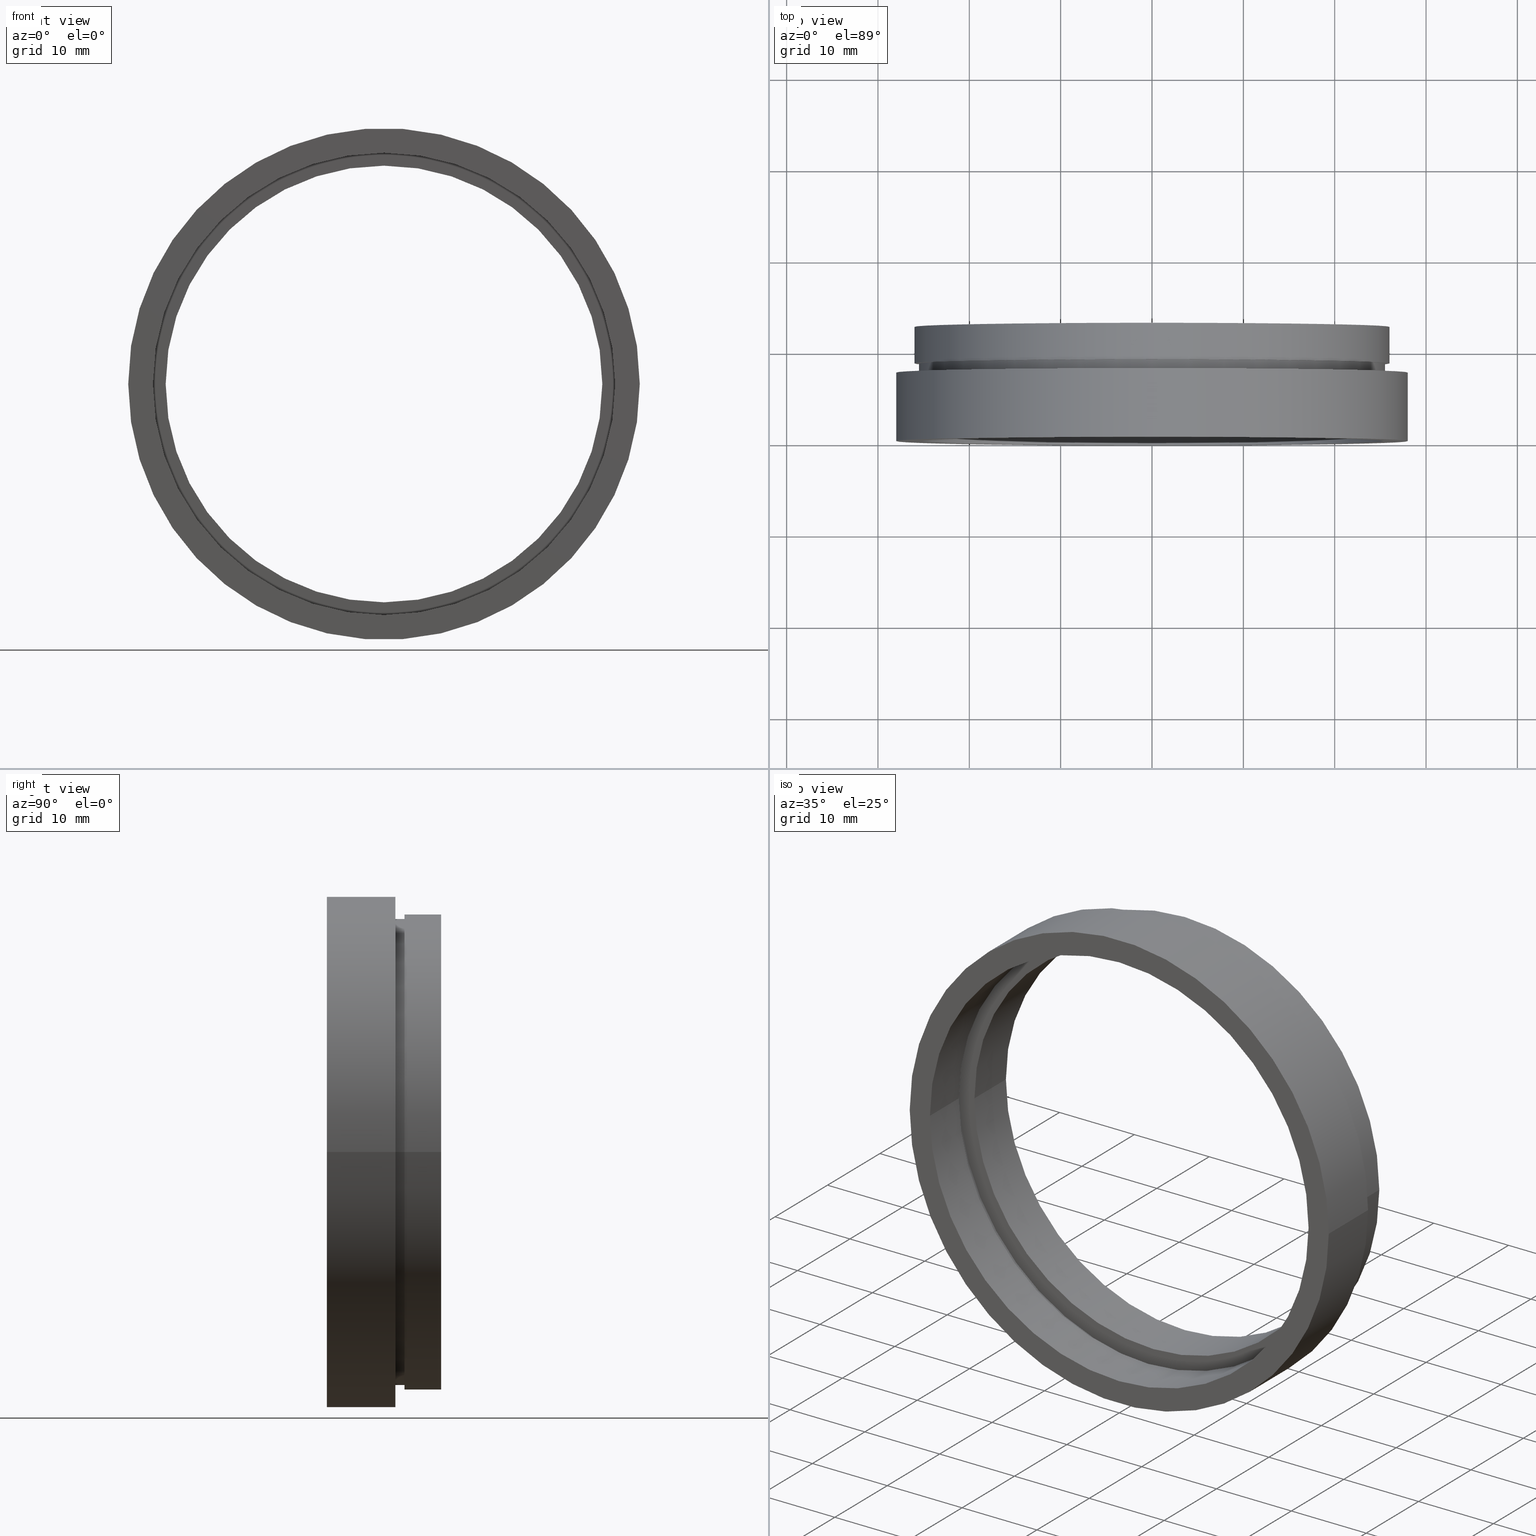
[diagram: canonical four-view strip — front | top / right | iso, engineering-drawing reading convention]
A machine part, canonical four-view strip (front | top / right | iso — engineering-drawing reading convention). The complete STEP part file that produces these views, byte-faithful:
ISO-10303-21;
HEADER;
FILE_DESCRIPTION (( 'STEP AP214' ),
    '1' );
FILE_NAME ('504096.STEP',
    '2019-10-08T03:25:06',
    ( '' ),
    ( '' ),
    'SwSTEP 2.0',
    'SolidWorks 2016',
    '' );
FILE_SCHEMA (( 'AUTOMOTIVE_DESIGN' ));
ENDSEC;

DATA;
#1 = ADVANCED_FACE ( 'NONE', ( #462, #346 ), #249, .F. ) ;
#2 = AXIS2_PLACEMENT_3D ( 'NONE', #334, #185, #242 ) ;
#3 = EDGE_CURVE ( 'NONE', #443, #500, #531, .T. ) ;
#4 = FACE_BOUND ( 'NONE', #354, .T. ) ;
#5 = DIRECTION ( 'NONE',  ( -1.224646799147351000E-016, 1.000000000000000000, 0.0000000000000000000 ) ) ;
#6 = VERTEX_POINT ( 'NONE', #528 ) ;
#7 = ORIENTED_EDGE ( 'NONE', *, *, #23, .T. ) ;
#8 = CYLINDRICAL_SURFACE ( 'NONE', #410, 25.94999999999999900 ) ;
#9 = FACE_OUTER_BOUND ( 'NONE', #310, .T. ) ;
#10 = LINE ( 'NONE', #121, #491 ) ;
#11 = AXIS2_PLACEMENT_3D ( 'NONE', #438, #481, #450 ) ;
#12 = VERTEX_POINT ( 'NONE', #148 ) ;
#13 = DIRECTION ( 'NONE',  ( -1.000000000000000000, -1.334402673828313300E-016, 0.0000000000000000000 ) ) ;
#14 = CARTESIAN_POINT ( 'NONE',  ( 5.371323195044473300E-016, 12.49999999999999600, 0.0000000000000000000 ) ) ;
#15 =( LENGTH_UNIT ( ) NAMED_UNIT ( * ) SI_UNIT ( .MILLI., .METRE. ) );
#16 = DIRECTION ( 'NONE',  ( -1.224646799147351000E-016, 1.000000000000000000, -0.0000000000000000000 ) ) ;
#17 = PRESENTATION_STYLE_ASSIGNMENT (( #135 ) ) ;
#18 =( NAMED_UNIT ( * ) SI_UNIT ( $, .STERADIAN. ) SOLID_ANGLE_UNIT ( ) );
#19 = ORIENTED_EDGE ( 'NONE', *, *, #347, .F. ) ;
#20 = AXIS2_PLACEMENT_3D ( 'NONE', #60, #457, #411 ) ;
#21 = ORIENTED_EDGE ( 'NONE', *, *, #493, .T. ) ;
#22 = AXIS2_PLACEMENT_3D ( 'NONE', #340, #510, #41 ) ;
#23 = EDGE_CURVE ( 'NONE', #128, #143, #88, .T. ) ;
#24 = DIRECTION ( 'NONE',  ( -1.000000000000000000, -1.239088197126290800E-016, 0.0000000000000000000 ) ) ;
#25 = AXIS2_PLACEMENT_3D ( 'NONE', #514, #34, #280 ) ;
#26 = CIRCLE ( 'NONE', #25, 25.99999999999999600 ) ;
#27 = EDGE_LOOP ( 'NONE', ( #352, #171, #511, #294 ) ) ;
#28 = DIRECTION ( 'NONE',  ( -1.000000000000000000, -1.360567432138672100E-016, 0.0000000000000000000 ) ) ;
#29 = ORIENTED_EDGE ( 'NONE', *, *, #119, .F. ) ;
#30 = CARTESIAN_POINT ( 'NONE',  ( 1.026991039163387900E-015, 8.499999999999996400, 0.0000000000000000000 ) ) ;
#31 = CARTESIAN_POINT ( 'NONE',  ( 0.0000000000000000000, 16.88601823708207700, 0.0000000000000000000 ) ) ;
#32 =( LENGTH_UNIT ( ) NAMED_UNIT ( * ) SI_UNIT ( .MILLI., .METRE. ) );
#33 = UNCERTAINTY_MEASURE_WITH_UNIT (LENGTH_MEASURE( 1.000000000000000100E-005 ), #451, 'distance_accuracy_value', 'NONE');
#34 = DIRECTION ( 'NONE',  ( -1.224646799147351000E-016, 1.000000000000000000, -0.0000000000000000000 ) ) ;
#35 = ORIENTED_EDGE ( 'NONE', *, *, #100, .T. ) ;
#36 = CARTESIAN_POINT ( 'NONE',  ( 1.149455719078123100E-015, 7.499999999999996400, 0.0000000000000000000 ) ) ;
#37 = STYLED_ITEM ( 'NONE', ( #17 ), #305 ) ;
#38 = DIRECTION ( 'NONE',  ( -1.224646799147351000E-016, 1.000000000000000000, -0.0000000000000000000 ) ) ;
#39 = EDGE_CURVE ( 'NONE', #198, #539, #75, .T. ) ;
#40 = ORIENTED_EDGE ( 'NONE', *, *, #100, .F. ) ;
#41 = DIRECTION ( 'NONE',  ( -1.000000000000000000, -1.336973777246094200E-016, 0.0000000000000000000 ) ) ;
#42 = AXIS2_PLACEMENT_3D ( 'NONE', #275, #332, #182 ) ;
#43 = PRODUCT_DEFINITION_SHAPE ( 'NONE', 'NONE',  #207 ) ;
#44 = DIRECTION ( 'NONE',  ( -1.224646799147351000E-016, 1.000000000000000000, -0.0000000000000000000 ) ) ;
#45 = MANIFOLD_SOLID_BREP ( '��ת1', #554 ) ;
#46 = DIRECTION ( 'NONE',  ( 0.0000000000000000000, 0.0000000000000000000, 1.000000000000000000 ) ) ;
#47 =( LENGTH_UNIT ( ) NAMED_UNIT ( * ) SI_UNIT ( .MILLI., .METRE. ) );
#48 = AXIS2_PLACEMENT_3D ( 'NONE', #36, #281, #563 ) ;
#49 = COLOUR_RGB ( '',1.000000000000000000, 1.000000000000000000, 1.000000000000000000 ) ;
#50 = EDGE_LOOP ( 'NONE', ( #562, #76 ) ) ;
#51 = EDGE_LOOP ( 'NONE', ( #570, #492, #187, #537 ) ) ;
#52 = UNCERTAINTY_MEASURE_WITH_UNIT (LENGTH_MEASURE( 1.000000000000000100E-005 ), #32, 'distance_accuracy_value', 'NONE');
#53 = CYLINDRICAL_SURFACE ( 'NONE', #441, 25.50000000000000400 ) ;
#54 = PRESENTATION_LAYER_ASSIGNMENT (  '', '', ( #549 ) ) ;
#55 = EDGE_CURVE ( 'NONE', #67, #240, #197, .T. ) ;
#56 = AXIS2_PLACEMENT_3D ( 'NONE', #610, #436, #87 ) ;
#57 = ORIENTED_EDGE ( 'NONE', *, *, #136, .F. ) ;
#58 = DIRECTION ( 'NONE',  ( -1.000000000000000000, -1.371322905910519200E-016, 0.0000000000000000000 ) ) ;
#59 = ORIENTED_EDGE ( 'NONE', *, *, #484, .F. ) ;
#60 = CARTESIAN_POINT ( 'NONE',  ( 2.067940818438636500E-015, -3.469446951953614200E-015, 0.0000000000000000000 ) ) ;
#61 = SURFACE_SIDE_STYLE ('',( #284 ) ) ;
#62 = SURFACE_SIDE_STYLE ('',( #335 ) ) ;
#63 = CARTESIAN_POINT ( 'NONE',  ( 0.0000000000000000000, 16.88601823708207700, 0.0000000000000000000 ) ) ;
#64 = MECHANICAL_DESIGN_GEOMETRIC_PRESENTATION_REPRESENTATION (  '', ( #357 ), #277 ) ;
#65 = CIRCLE ( 'NONE', #244, 25.50000000000000400 ) ;
#66 = AXIS2_PLACEMENT_3D ( 'NONE', #30, #78, #167 ) ;
#67 = VERTEX_POINT ( 'NONE', #576 ) ;
#68 = CARTESIAN_POINT ( 'NONE',  ( 0.0000000000000000000, 16.88601823708207700, 0.0000000000000000000 ) ) ;
#69 = FILL_AREA_STYLE ('',( #120 ) ) ;
#70 = DIRECTION ( 'NONE',  ( -1.224646799147351000E-016, 1.000000000000000000, -0.0000000000000000000 ) ) ;
#71 = CARTESIAN_POINT ( 'NONE',  ( 0.0000000000000000000, 16.88601823708207700, 0.0000000000000000000 ) ) ;
#72 = PLANE ( 'NONE',  #504 ) ;
#73 = CIRCLE ( 'NONE', #482, 25.30000000000000400 ) ;
#74 = DIRECTION ( 'NONE',  ( -1.224646799147351000E-016, 1.000000000000000000, -0.0000000000000000000 ) ) ;
#75 = CIRCLE ( 'NONE', #114, 25.94999999999999900 ) ;
#76 = ORIENTED_EDGE ( 'NONE', *, *, #39, .T. ) ;
#77 = SURFACE_SIDE_STYLE ('',( #623 ) ) ;
#78 = DIRECTION ( 'NONE',  ( -1.224646799147351000E-016, 1.000000000000000000, -0.0000000000000000000 ) ) ;
#79 = CARTESIAN_POINT ( 'NONE',  ( 5.371323195044477300E-016, 12.49999999999999500, 0.0000000000000000000 ) ) ;
#80 = LINE ( 'NONE', #498, #238 ) ;
#81 = DIRECTION ( 'NONE',  ( -1.000000000000000000, -1.224646799147351000E-016, 0.0000000000000000000 ) ) ;
#82 = ORIENTED_EDGE ( 'NONE', *, *, #145, .T. ) ;
#83 = APPLICATION_PROTOCOL_DEFINITION ( 'draft international standard', 'automotive_design', 1998, #383 ) ;
#84 =( LENGTH_UNIT ( ) NAMED_UNIT ( * ) SI_UNIT ( .MILLI., .METRE. ) );
#85 = DIRECTION ( 'NONE',  ( -1.224646799147351000E-016, 1.000000000000000000, -0.0000000000000000000 ) ) ;
#86 = ADVANCED_FACE ( 'NONE', ( #455, #379 ), #580, .F. ) ;
#87 = DIRECTION ( 'NONE',  ( -1.000000000000000000, -1.088738583249042200E-016, 0.0000000000000000000 ) ) ;
#88 = CIRCLE ( 'NONE', #614, 28.00000000000000000 ) ;
#89 = FILL_AREA_STYLE ('',( #130 ) ) ;
#90 = ORIENTED_EDGE ( 'NONE', *, *, #367, .T. ) ;
#91 = MECHANICAL_DESIGN_GEOMETRIC_PRESENTATION_REPRESENTATION (  '', ( #37 ), #181 ) ;
#92 = VECTOR ( 'NONE', #283, 1000.000000000000000 ) ;
#93 = FACE_OUTER_BOUND ( 'NONE', #488, .T. ) ;
#94 = EDGE_LOOP ( 'NONE', ( #607, #57, #165, #499 ) ) ;
#95 = AXIS2_PLACEMENT_3D ( 'NONE', #117, #223, #418 ) ;
#96 = FACE_OUTER_BOUND ( 'NONE', #94, .T. ) ;
#97 = ORIENTED_EDGE ( 'NONE', *, *, #299, .F. ) ;
#98 = ORIENTED_EDGE ( 'NONE', *, *, #145, .F. ) ;
#99 = CARTESIAN_POINT ( 'NONE',  ( 23.89999999999999900, 12.50000000000000000, 2.926905849962173700E-015 ) ) ;
#100 = EDGE_CURVE ( 'NONE', #296, #158, #594, .T. ) ;
#101 = CIRCLE ( 'NONE', #66, 25.50000000000000400 ) ;
#102 = LINE ( 'NONE', #561, #142 ) ;
#103 = AXIS2_PLACEMENT_3D ( 'NONE', #616, #434, #81 ) ;
#104 = SURFACE_STYLE_USAGE ( .BOTH. , #61 ) ;
#105 = SURFACE_STYLE_USAGE ( .BOTH. , #62 ) ;
#106 = VERTEX_POINT ( 'NONE', #495 ) ;
#107 = DIRECTION ( 'NONE',  ( -1.000000000000000000, -1.336973777246094200E-016, 0.0000000000000000000 ) ) ;
#108 = AXIS2_PLACEMENT_3D ( 'NONE', #169, #596, #558 ) ;
#109 =( GEOMETRIC_REPRESENTATION_CONTEXT ( 3 ) GLOBAL_UNCERTAINTY_ASSIGNED_CONTEXT ( ( #52 ) ) GLOBAL_UNIT_ASSIGNED_CONTEXT ( ( #32, #386, #341 ) ) REPRESENTATION_CONTEXT ( 'NONE', 'WORKASPACE' ) );
#110 = DIRECTION ( 'NONE',  ( -1.224646799147351000E-016, 1.000000000000000000, -0.0000000000000000000 ) ) ;
#111 = CARTESIAN_POINT ( 'NONE',  ( 0.0000000000000000000, 16.88601823708207700, 0.0000000000000000000 ) ) ;
#112 = FILL_AREA_STYLE ('',( #219 ) ) ;
#113 = CIRCLE ( 'NONE', #599, 23.89999999999999900 ) ;
#114 = AXIS2_PLACEMENT_3D ( 'NONE', #590, #585, #107 ) ;
#115 =( GEOMETRIC_REPRESENTATION_CONTEXT ( 3 ) GLOBAL_UNCERTAINTY_ASSIGNED_CONTEXT ( ( #33 ) ) GLOBAL_UNIT_ASSIGNED_CONTEXT ( ( #451, #538, #157 ) ) REPRESENTATION_CONTEXT ( 'NONE', 'WORKASPACE' ) );
#116 = ORIENTED_EDGE ( 'NONE', *, *, #575, .T. ) ;
#117 = CARTESIAN_POINT ( 'NONE',  ( 1.394385078907593400E-015, 5.499999999999994700, 0.0000000000000000000 ) ) ;
#118 = EDGE_LOOP ( 'NONE', ( #98, #247 ) ) ;
#119 = EDGE_CURVE ( 'NONE', #319, #106, #65, .T. ) ;
#120 = FILL_AREA_STYLE_COLOUR ( '', #317 ) ;
#121 = CARTESIAN_POINT ( 'NONE',  ( 25.94999999999999900, 16.88601823708208000, 3.177958443787381900E-015 ) ) ;
#122 = ADVANCED_FACE ( 'NONE', ( #93 ), #245, .T. ) ;
#123 = CARTESIAN_POINT ( 'NONE',  ( 5.371323195044477300E-016, 12.49999999999999500, 0.0000000000000000000 ) ) ;
#124 = UNCERTAINTY_MEASURE_WITH_UNIT (LENGTH_MEASURE( 1.000000000000000100E-005 ), #84, 'distance_accuracy_value', 'NONE');
#125 = VECTOR ( 'NONE', #164, 1000.000000000000000 ) ;
#126 = FACE_OUTER_BOUND ( 'NONE', #483, .T. ) ;
#127 = DIRECTION ( 'NONE',  ( -1.000000000000000000, -1.371322905910519200E-016, 0.0000000000000000000 ) ) ;
#128 = VERTEX_POINT ( 'NONE', #166 ) ;
#129 =( NAMED_UNIT ( * ) PLANE_ANGLE_UNIT ( ) SI_UNIT ( $, .RADIAN. ) );
#130 = FILL_AREA_STYLE_COLOUR ( '', #530 ) ;
#131 = ADVANCED_FACE ( 'NONE', ( #230 ), #53, .T. ) ;
#132 = DIRECTION ( 'NONE',  ( -1.224646799147351000E-016, 1.000000000000000000, -0.0000000000000000000 ) ) ;
#133 = ORIENTED_EDGE ( 'NONE', *, *, #402, .T. ) ;
#134 = ORIENTED_EDGE ( 'NONE', *, *, #262, .F. ) ;
#135 = SURFACE_STYLE_USAGE ( .BOTH. , #192 ) ;
#136 = EDGE_CURVE ( 'NONE', #539, #198, #336, .T. ) ;
#137 = PRESENTATION_STYLE_ASSIGNMENT (( #218 ) ) ;
#138 = ORIENTED_EDGE ( 'NONE', *, *, #534, .T. ) ;
#139 = AXIS2_PLACEMENT_3D ( 'NONE', #14, #582, #409 ) ;
#140 = ADVANCED_FACE ( 'NONE', ( #390 ), #486, .F. ) ;
#141 =( GEOMETRIC_REPRESENTATION_CONTEXT ( 3 ) GLOBAL_UNCERTAINTY_ASSIGNED_CONTEXT ( ( #124 ) ) GLOBAL_UNIT_ASSIGNED_CONTEXT ( ( #84, #129, #427 ) ) REPRESENTATION_CONTEXT ( 'NONE', 'WORKASPACE' ) );
#142 = VECTOR ( 'NONE', #44, 1000.000000000000000 ) ;
#143 = VERTEX_POINT ( 'NONE', #373 ) ;
#144 = VERTEX_POINT ( 'NONE', #376 ) ;
#145 = EDGE_CURVE ( 'NONE', #360, #372, #239, .T. ) ;
#146 = ADVANCED_FACE ( 'NONE', ( #351 ), #273, .T. ) ;
#147 = EDGE_CURVE ( 'NONE', #106, #240, #358, .T. ) ;
#148 = CARTESIAN_POINT ( 'NONE',  ( -23.89999999999999900, 6.499999999999992900, 0.0000000000000000000 ) ) ;
#149 = CARTESIAN_POINT ( 'NONE',  ( 25.30000000000000400, -3.710905501108162000E-016, 3.098356401842804300E-015 ) ) ;
#150 = CIRCLE ( 'NONE', #254, 26.00000000000000000 ) ;
#151 = DIRECTION ( 'NONE',  ( -1.224646799147351000E-016, 1.000000000000000000, -0.0000000000000000000 ) ) ;
#152 = FACE_BOUND ( 'NONE', #251, .T. ) ;
#153 = ORIENTED_EDGE ( 'NONE', *, *, #598, .T. ) ;
#154 = VERTEX_POINT ( 'NONE', #226 ) ;
#155 = UNCERTAINTY_MEASURE_WITH_UNIT (LENGTH_MEASURE( 1.000000000000000100E-005 ), #177, 'distance_accuracy_value', 'NONE');
#156 = DIRECTION ( 'NONE',  ( -1.224646799147351000E-016, 1.000000000000000000, -0.0000000000000000000 ) ) ;
#157 =( NAMED_UNIT ( * ) SI_UNIT ( $, .STERADIAN. ) SOLID_ANGLE_UNIT ( ) );
#158 = VERTEX_POINT ( 'NONE', #269 ) ;
#159 = DIRECTION ( 'NONE',  ( -1.000000000000000000, -1.360567432138672100E-016, 0.0000000000000000000 ) ) ;
#160 = DIRECTION ( 'NONE',  ( -1.224646799147351000E-016, 1.000000000000000000, -0.0000000000000000000 ) ) ;
#161 = STYLED_ITEM ( 'NONE', ( #137 ), #140 ) ;
#162 = CIRCLE ( 'NONE', #2, 25.30000000000000100 ) ;
#163 = DIRECTION ( 'NONE',  ( -1.224646799147351000E-016, 1.000000000000000000, -0.0000000000000000000 ) ) ;
#164 = DIRECTION ( 'NONE',  ( -1.224646799147351000E-016, 1.000000000000000000, -0.0000000000000000000 ) ) ;
#165 = ORIENTED_EDGE ( 'NONE', *, *, #393, .T. ) ;
#166 = CARTESIAN_POINT ( 'NONE',  ( -28.00000000000000000, 7.499999999999992900, 0.0000000000000000000 ) ) ;
#167 = DIRECTION ( 'NONE',  ( -1.000000000000000000, -1.360567432138672100E-016, 0.0000000000000000000 ) ) ;
#168 = AXIS2_PLACEMENT_3D ( 'NONE', #505, #591, #496 ) ;
#169 = CARTESIAN_POINT ( 'NONE',  ( 0.0000000000000000000, 16.88601823708207700, 0.0000000000000000000 ) ) ;
#170 = CARTESIAN_POINT ( 'NONE',  ( -25.29999999999999700, -6.567803353796412200E-015, 0.0000000000000000000 ) ) ;
#171 = ORIENTED_EDGE ( 'NONE', *, *, #147, .T. ) ;
#172 = DIRECTION ( 'NONE',  ( -1.224646799147351000E-016, 1.000000000000000000, -0.0000000000000000000 ) ) ;
#173 = DIRECTION ( 'NONE',  ( 1.000000000000000000, 1.224646799147351000E-016, 0.0000000000000000000 ) ) ;
#174 = EDGE_CURVE ( 'NONE', #198, #392, #10, .T. ) ;
#175 = VECTOR ( 'NONE', #38, 1000.000000000000000 ) ;
#176 = EDGE_LOOP ( 'NONE', ( #525, #40 ) ) ;
#177 =( LENGTH_UNIT ( ) NAMED_UNIT ( * ) SI_UNIT ( .MILLI., .METRE. ) );
#178 = ORIENTED_EDGE ( 'NONE', *, *, #339, .F. ) ;
#179 = CARTESIAN_POINT ( 'NONE',  ( 25.99999999999999600, 8.500000000000001800, 3.184081677783117800E-015 ) ) ;
#180 = DIRECTION ( 'NONE',  ( -1.000000000000000000, -1.451651444332056200E-016, 0.0000000000000000000 ) ) ;
#181 =( GEOMETRIC_REPRESENTATION_CONTEXT ( 3 ) GLOBAL_UNCERTAINTY_ASSIGNED_CONTEXT ( ( #276 ) ) GLOBAL_UNIT_ASSIGNED_CONTEXT ( ( #47, #620, #477 ) ) REPRESENTATION_CONTEXT ( 'NONE', 'WORKASPACE' ) );
#182 = DIRECTION ( 'NONE',  ( -1.000000000000000000, -1.336973777246094200E-016, 0.0000000000000000000 ) ) ;
#183 = EDGE_LOOP ( 'NONE', ( #82, #371, #345, #134 ) ) ;
#184 = ADVANCED_FACE ( 'NONE', ( #96 ), #308, .F. ) ;
#185 = DIRECTION ( 'NONE',  ( -1.224646799147351000E-016, 1.000000000000000000, -0.0000000000000000000 ) ) ;
#186 = SURFACE_STYLE_FILL_AREA ( #387 ) ;
#187 = ORIENTED_EDGE ( 'NONE', *, *, #502, .T. ) ;
#188 = SURFACE_SIDE_STYLE ('',( #186 ) ) ;
#189 = STYLED_ITEM ( 'NONE', ( #203 ), #45 ) ;
#190 = EDGE_CURVE ( 'NONE', #154, #392, #573, .T. ) ;
#191 = FACE_OUTER_BOUND ( 'NONE', #50, .T. ) ;
#192 = SURFACE_SIDE_STYLE ('',( #509 ) ) ;
#193 = ORIENTED_EDGE ( 'NONE', *, *, #261, .T. ) ;
#194 = PRODUCT_DEFINITION_CONTEXT ( 'detailed design', #383, 'design' ) ;
#195 = ADVANCED_FACE ( 'NONE', ( #407 ), #432, .T. ) ;
#196 = CYLINDRICAL_SURFACE ( 'NONE', #211, 23.89999999999999900 ) ;
#197 = CIRCLE ( 'NONE', #210, 25.50000000000000400 ) ;
#198 = VERTEX_POINT ( 'NONE', #613 ) ;
#199 = EDGE_CURVE ( 'NONE', #12, #144, #442, .T. ) ;
#200 = AXIS2_PLACEMENT_3D ( 'NONE', #63, #160, #253 ) ;
#201 = EDGE_CURVE ( 'NONE', #372, #143, #414, .T. ) ;
#202 = DIRECTION ( 'NONE',  ( -1.224646799147351000E-016, 1.000000000000000000, -0.0000000000000000000 ) ) ;
#203 = PRESENTATION_STYLE_ASSIGNMENT (( #104 ) ) ;
#204 = EDGE_LOOP ( 'NONE', ( #423, #617, #21, #533 ) ) ;
#205 = EDGE_CURVE ( 'NONE', #392, #154, #523, .T. ) ;
#206 = CARTESIAN_POINT ( 'NONE',  ( 1.026991039163387700E-015, 8.499999999999998200, 0.0000000000000000000 ) ) ;
#207 = PRODUCT_DEFINITION ( 'δ֪', '', #454, #194 ) ;
#208 = CARTESIAN_POINT ( 'NONE',  ( 0.0000000000000000000, 16.88601823708207700, 0.0000000000000000000 ) ) ;
#209 = CARTESIAN_POINT ( 'NONE',  ( 25.94999999999999900, 6.499999999999999100, 3.177958443787381900E-015 ) ) ;
#210 = AXIS2_PLACEMENT_3D ( 'NONE', #536, #202, #159 ) ;
#211 = AXIS2_PLACEMENT_3D ( 'NONE', #31, #85, #380 ) ;
#212 = LINE ( 'NONE', #461, #445 ) ;
#213 = CIRCLE ( 'NONE', #139, 23.89999999999999900 ) ;
#214 = ORIENTED_EDGE ( 'NONE', *, *, #534, .F. ) ;
#215 = FILL_AREA_STYLE ('',( #583 ) ) ;
#216 = CARTESIAN_POINT ( 'NONE',  ( 1.394385078907593400E-015, 5.499999999999994700, 0.0000000000000000000 ) ) ;
#217 = DIRECTION ( 'NONE',  ( -1.000000000000000000, -1.336973777246094200E-016, 0.0000000000000000000 ) ) ;
#218 = SURFACE_STYLE_USAGE ( .BOTH. , #77 ) ;
#219 = FILL_AREA_STYLE_COLOUR ( '', #271 ) ;
#220 = PRESENTATION_LAYER_ASSIGNMENT (  '', '', ( #189 ) ) ;
#221 = PRESENTATION_STYLE_ASSIGNMENT (( #431 ) ) ;
#222 = PRODUCT_RELATED_PRODUCT_CATEGORY ( 'part', '', ( #265 ) ) ;
#223 = DIRECTION ( 'NONE',  ( -1.224646799147351000E-016, 1.000000000000000000, -0.0000000000000000000 ) ) ;
#224 = ORIENTED_EDGE ( 'NONE', *, *, #575, .F. ) ;
#225 = ORIENTED_EDGE ( 'NONE', *, *, #174, .T. ) ;
#226 = CARTESIAN_POINT ( 'NONE',  ( -25.94999999999999900, 6.499999999999992000, 0.0000000000000000000 ) ) ;
#227 = AXIS2_PLACEMENT_3D ( 'NONE', #216, #361, #58 ) ;
#228 = APPLICATION_PROTOCOL_DEFINITION ( 'draft international standard', 'automotive_design', 1998, #474 ) ;
#229 = LINE ( 'NONE', #364, #349 ) ;
#230 = FACE_OUTER_BOUND ( 'NONE', #204, .T. ) ;
#231 = CARTESIAN_POINT ( 'NONE',  ( -23.89999999999999900, 16.88601823708207300, 0.0000000000000000000 ) ) ;
#232 = ORIENTED_EDGE ( 'NONE', *, *, #314, .F. ) ;
#233 = CARTESIAN_POINT ( 'NONE',  ( 5.371323195044473300E-016, 12.49999999999999600, 0.0000000000000000000 ) ) ;
#234 = AXIS2_PLACEMENT_3D ( 'NONE', #468, #566, #522 ) ;
#235 =( LENGTH_UNIT ( ) NAMED_UNIT ( * ) SI_UNIT ( .MILLI., .METRE. ) );
#236 = DIRECTION ( 'NONE',  ( -1.224646799147351000E-016, 1.000000000000000000, -0.0000000000000000000 ) ) ;
#237 = PLANE ( 'NONE',  #103 ) ;
#238 = VECTOR ( 'NONE', #74, 1000.000000000000000 ) ;
#239 = CIRCLE ( 'NONE', #428, 27.99999999999999600 ) ;
#240 = VERTEX_POINT ( 'NONE', #608 ) ;
#241 = EDGE_LOOP ( 'NONE', ( #464, #401 ) ) ;
#242 = DIRECTION ( 'NONE',  ( -1.000000000000000000, -1.224646799147351000E-016, 0.0000000000000000000 ) ) ;
#243 = EDGE_CURVE ( 'NONE', #12, #6, #282, .T. ) ;
#244 = AXIS2_PLACEMENT_3D ( 'NONE', #327, #600, #330 ) ;
#245 = CYLINDRICAL_SURFACE ( 'NONE', #470, 25.99999999999999600 ) ;
#246 = AXIS2_PLACEMENT_3D ( 'NONE', #489, #581, #318 ) ;
#247 = ORIENTED_EDGE ( 'NONE', *, *, #413, .F. ) ;
#248 = ADVANCED_FACE ( 'NONE', ( #298, #152 ), #237, .F. ) ;
#249 = PLANE ( 'NONE',  #309 ) ;
#250 = CIRCLE ( 'NONE', #48, 28.00000000000000000 ) ;
#251 = EDGE_LOOP ( 'NONE', ( #266, #381 ) ) ;
#252 = ORIENTED_EDGE ( 'NONE', *, *, #199, .F. ) ;
#253 = DIRECTION ( 'NONE',  ( -1.000000000000000000, -1.371322905910519200E-016, 0.0000000000000000000 ) ) ;
#254 = AXIS2_PLACEMENT_3D ( 'NONE', #123, #70, #467 ) ;
#255 = FACE_BOUND ( 'NONE', #301, .T. ) ;
#256 = DIRECTION ( 'NONE',  ( -1.224646799147351000E-016, 1.000000000000000000, -0.0000000000000000000 ) ) ;
#257 = EDGE_LOOP ( 'NONE', ( #447, #90, #116, #425 ) ) ;
#258 = PLANE ( 'NONE',  #246 ) ;
#259 =( NAMED_UNIT ( * ) SI_UNIT ( $, .STERADIAN. ) SOLID_ANGLE_UNIT ( ) );
#260 = FILL_AREA_STYLE ('',( #307 ) ) ;
#261 = EDGE_CURVE ( 'NONE', #443, #597, #102, .T. ) ;
#262 = EDGE_CURVE ( 'NONE', #360, #128, #605, .T. ) ;
#263 = ORIENTED_EDGE ( 'NONE', *, *, #402, .F. ) ;
#264 = DIRECTION ( 'NONE',  ( -1.224646799147351000E-016, 1.000000000000000000, -0.0000000000000000000 ) ) ;
#265 = PRODUCT ( '504096', '504096', '', ( #285 ) ) ;
#266 = ORIENTED_EDGE ( 'NONE', *, *, #302, .T. ) ;
#267 =( NAMED_UNIT ( * ) SI_UNIT ( $, .STERADIAN. ) SOLID_ANGLE_UNIT ( ) );
#268 = DIRECTION ( 'NONE',  ( -1.224646799147351000E-016, 1.000000000000000000, -0.0000000000000000000 ) ) ;
#269 = CARTESIAN_POINT ( 'NONE',  ( -25.99999999999999600, 8.499999999999994700, 0.0000000000000000000 ) ) ;
#270 = EDGE_CURVE ( 'NONE', #158, #296, #26, .T. ) ;
#271 = COLOUR_RGB ( '',1.000000000000000000, 1.000000000000000000, 1.000000000000000000 ) ;
#272 = FACE_OUTER_BOUND ( 'NONE', #416, .T. ) ;
#273 = CYLINDRICAL_SURFACE ( 'NONE', #168, 25.50000000000000400 ) ;
#274 = EDGE_LOOP ( 'NONE', ( #365, #595, #480, #526 ) ) ;
#275 = CARTESIAN_POINT ( 'NONE',  ( 1.271920398992858200E-015, 6.499999999999995600, 0.0000000000000000000 ) ) ;
#276 = UNCERTAINTY_MEASURE_WITH_UNIT (LENGTH_MEASURE( 1.000000000000000100E-005 ), #47, 'distance_accuracy_value', 'NONE');
#277 =( GEOMETRIC_REPRESENTATION_CONTEXT ( 3 ) GLOBAL_UNCERTAINTY_ASSIGNED_CONTEXT ( ( #297 ) ) GLOBAL_UNIT_ASSIGNED_CONTEXT ( ( #466, #370, #18 ) ) REPRESENTATION_CONTEXT ( 'NONE', 'WORKASPACE' ) );
#278 = CARTESIAN_POINT ( 'NONE',  ( 25.30000000000000400, 5.499999999999998200, 3.098356401842804300E-015 ) ) ;
#279 = DIRECTION ( 'NONE',  ( 1.000000000000000000, 0.0000000000000000000, 0.0000000000000000000 ) ) ;
#280 = DIRECTION ( 'NONE',  ( -1.000000000000000000, -1.334402673828313300E-016, 0.0000000000000000000 ) ) ;
#281 = DIRECTION ( 'NONE',  ( -1.224646799147351000E-016, 1.000000000000000000, -0.0000000000000000000 ) ) ;
#282 = LINE ( 'NONE', #231, #175 ) ;
#283 = DIRECTION ( 'NONE',  ( -1.224646799147351000E-016, 1.000000000000000000, -0.0000000000000000000 ) ) ;
#284 = SURFACE_STYLE_FILL_AREA ( #215 ) ;
#285 = PRODUCT_CONTEXT ( 'NONE', #474, 'mechanical' ) ;
#286 = ORIENTED_EDGE ( 'NONE', *, *, #459, .T. ) ;
#287 = ADVANCED_FACE ( 'NONE', ( #545 ), #196, .F. ) ;
#288 = AXIS2_PLACEMENT_3D ( 'NONE', #535, #540, #542 ) ;
#289 = FILL_AREA_STYLE_COLOUR ( '', #356 ) ;
#290 = MECHANICAL_DESIGN_GEOMETRIC_PRESENTATION_REPRESENTATION (  '', ( #406 ), #141 ) ;
#291 = VECTOR ( 'NONE', #313, 1000.000000000000000 ) ;
#292 = STYLED_ITEM ( 'NONE', ( #326 ), #532 ) ;
#293 = EDGE_LOOP ( 'NONE', ( #7, #153 ) ) ;
#294 = ORIENTED_EDGE ( 'NONE', *, *, #493, .F. ) ;
#295 = PRESENTATION_LAYER_ASSIGNMENT (  '', '', ( #406 ) ) ;
#296 = VERTEX_POINT ( 'NONE', #179 ) ;
#297 = UNCERTAINTY_MEASURE_WITH_UNIT (LENGTH_MEASURE( 1.000000000000000100E-005 ), #466, 'distance_accuracy_value', 'NONE');
#298 = FACE_OUTER_BOUND ( 'NONE', #118, .T. ) ;
#299 = EDGE_CURVE ( 'NONE', #344, #579, #316, .T. ) ;
#300 = PRESENTATION_LAYER_ASSIGNMENT (  '', '', ( #399 ) ) ;
#301 = EDGE_LOOP ( 'NONE', ( #391, #543 ) ) ;
#302 = EDGE_CURVE ( 'NONE', #500, #443, #162, .T. ) ;
#303 = CARTESIAN_POINT ( 'NONE',  ( 25.99999999999999600, 8.500000000000000000, 0.0000000000000000000 ) ) ;
#304 = ORIENTED_EDGE ( 'NONE', *, *, #39, .F. ) ;
#305 = ADVANCED_FACE ( 'NONE', ( #9 ), #439, .T. ) ;
#306 = SURFACE_STYLE_FILL_AREA ( #611 ) ;
#307 = FILL_AREA_STYLE_COLOUR ( '', #453 ) ;
#308 = CYLINDRICAL_SURFACE ( 'NONE', #485, 25.94999999999999900 ) ;
#309 = AXIS2_PLACEMENT_3D ( 'NONE', #303, #5, #355 ) ;
#310 = EDGE_LOOP ( 'NONE', ( #59, #35, #487, #359 ) ) ;
#311 = AXIS2_PLACEMENT_3D ( 'NONE', #233, #236, #180 ) ;
#312 = DIRECTION ( 'NONE',  ( -1.224646799147351000E-016, 1.000000000000000000, -0.0000000000000000000 ) ) ;
#313 = DIRECTION ( 'NONE',  ( -1.224646799147351000E-016, 1.000000000000000000, -0.0000000000000000000 ) ) ;
#314 = EDGE_CURVE ( 'NONE', #106, #319, #569, .T. ) ;
#315 = CARTESIAN_POINT ( 'NONE',  ( 1.149455719078123100E-015, 7.499999999999996400, 0.0000000000000000000 ) ) ;
#316 = CIRCLE ( 'NONE', #516, 26.00000000000000000 ) ;
#317 = COLOUR_RGB ( '',1.000000000000000000, 1.000000000000000000, 1.000000000000000000 ) ;
#318 = DIRECTION ( 'NONE',  ( -1.000000000000000000, -1.224646799147351000E-016, 0.0000000000000000000 ) ) ;
#319 = VERTEX_POINT ( 'NONE', #567 ) ;
#320 = DIRECTION ( 'NONE',  ( -1.224646799147351000E-016, 1.000000000000000000, -0.0000000000000000000 ) ) ;
#321 = UNCERTAINTY_MEASURE_WITH_UNIT (LENGTH_MEASURE( 1.000000000000000100E-005 ), #15, 'distance_accuracy_value', 'NONE');
#322 = SURFACE_STYLE_USAGE ( .BOTH. , #458 ) ;
#323 = DIRECTION ( 'NONE',  ( -1.000000000000000000, -1.451651444332056200E-016, 0.0000000000000000000 ) ) ;
#324 = AXIS2_PLACEMENT_3D ( 'NONE', #206, #312, #13 ) ;
#325 =( NAMED_UNIT ( * ) SI_UNIT ( $, .STERADIAN. ) SOLID_ANGLE_UNIT ( ) );
#326 = PRESENTATION_STYLE_ASSIGNMENT (( #551 ) ) ;
#327 = CARTESIAN_POINT ( 'NONE',  ( 1.149455719078123100E-015, 7.499999999999996400, 0.0000000000000000000 ) ) ;
#328 = EDGE_LOOP ( 'NONE', ( #263, #224 ) ) ;
#329 = AXIS2_PLACEMENT_3D ( 'NONE', #68, #151, #24 ) ;
#330 = DIRECTION ( 'NONE',  ( -1.000000000000000000, -1.360567432138672100E-016, 0.0000000000000000000 ) ) ;
#331 = PLANE ( 'NONE',  #396 ) ;
#332 = DIRECTION ( 'NONE',  ( -1.224646799147351000E-016, 1.000000000000000000, -0.0000000000000000000 ) ) ;
#333 = CARTESIAN_POINT ( 'NONE',  ( 26.00000000000000400, 12.49999999999999800, 3.184081677783118600E-015 ) ) ;
#334 = CARTESIAN_POINT ( 'NONE',  ( 2.067940818438636500E-015, -3.469446951953614200E-015, 0.0000000000000000000 ) ) ;
#335 = SURFACE_STYLE_FILL_AREA ( #260 ) ;
#336 = CIRCLE ( 'NONE', #95, 25.94999999999999900 ) ;
#337 = COLOUR_RGB ( '',1.000000000000000000, 1.000000000000000000, 1.000000000000000000 ) ;
#338 = FILL_AREA_STYLE_COLOUR ( '', #49 ) ;
#339 = EDGE_CURVE ( 'NONE', #478, #597, #397, .T. ) ;
#340 = CARTESIAN_POINT ( 'NONE',  ( 1.271920398992858200E-015, 6.499999999999995600, 0.0000000000000000000 ) ) ;
#341 =( NAMED_UNIT ( * ) SI_UNIT ( $, .STERADIAN. ) SOLID_ANGLE_UNIT ( ) );
#342 = CARTESIAN_POINT ( 'NONE',  ( 27.99999999999999600, 16.88601823708208000, 3.429011037612588900E-015 ) ) ;
#343 = SURFACE_SIDE_STYLE ('',( #306 ) ) ;
#344 = VERTEX_POINT ( 'NONE', #521 ) ;
#345 = ORIENTED_EDGE ( 'NONE', *, *, #23, .F. ) ;
#346 = FACE_BOUND ( 'NONE', #587, .T. ) ;
#347 = EDGE_CURVE ( 'NONE', #158, #344, #422, .T. ) ;
#348 = CYLINDRICAL_SURFACE ( 'NONE', #200, 25.30000000000000400 ) ;
#349 = VECTOR ( 'NONE', #366, 1000.000000000000000 ) ;
#350 = AXIS2_PLACEMENT_3D ( 'NONE', #448, #541, #456 ) ;
#351 = FACE_OUTER_BOUND ( 'NONE', #27, .T. ) ;
#352 = ORIENTED_EDGE ( 'NONE', *, *, #119, .T. ) ;
#353 = ADVANCED_FACE ( 'NONE', ( #272, #255 ), #258, .F. ) ;
#354 = EDGE_LOOP ( 'NONE', ( #178, #214 ) ) ;
#355 = DIRECTION ( 'NONE',  ( -1.000000000000000000, -1.224646799147351000E-016, 0.0000000000000000000 ) ) ;
#356 = COLOUR_RGB ( '',1.000000000000000000, 1.000000000000000000, 1.000000000000000000 ) ;
#357 = STYLED_ITEM ( 'NONE', ( #433 ), #122 ) ;
#358 = LINE ( 'NONE', #555, #578 ) ;
#359 = ORIENTED_EDGE ( 'NONE', *, *, #520, .F. ) ;
#360 = VERTEX_POINT ( 'NONE', #586 ) ;
#361 = DIRECTION ( 'NONE',  ( -1.224646799147351000E-016, 1.000000000000000000, -0.0000000000000000000 ) ) ;
#362 = MECHANICAL_DESIGN_GEOMETRIC_PRESENTATION_REPRESENTATION (  '', ( #549 ), #115 ) ;
#363 = CARTESIAN_POINT ( 'NONE',  ( -25.94999999999999900, 16.88601823708207300, 0.0000000000000000000 ) ) ;
#364 = CARTESIAN_POINT ( 'NONE',  ( 23.89999999999999900, 16.88601823708208000, 2.926905849962173700E-015 ) ) ;
#365 = ORIENTED_EDGE ( 'NONE', *, *, #201, .F. ) ;
#366 = DIRECTION ( 'NONE',  ( -1.224646799147351000E-016, 1.000000000000000000, -0.0000000000000000000 ) ) ;
#367 = EDGE_CURVE ( 'NONE', #144, #398, #229, .T. ) ;
#368 = DIRECTION ( 'NONE',  ( -1.000000000000000000, -1.239088197126290800E-016, 0.0000000000000000000 ) ) ;
#369 = CARTESIAN_POINT ( 'NONE',  ( -25.94999999999999900, 5.499999999999991100, 0.0000000000000000000 ) ) ;
#370 =( NAMED_UNIT ( * ) PLANE_ANGLE_UNIT ( ) SI_UNIT ( $, .RADIAN. ) );
#371 = ORIENTED_EDGE ( 'NONE', *, *, #201, .T. ) ;
#372 = VERTEX_POINT ( 'NONE', #544 ) ;
#373 = CARTESIAN_POINT ( 'NONE',  ( 28.00000000000000400, 7.500000000000000000, 3.429011037612589700E-015 ) ) ;
#374 = CARTESIAN_POINT ( 'NONE',  ( -25.30000000000000400, 5.499999999999991100, 0.0000000000000000000 ) ) ;
#375 = MECHANICAL_DESIGN_GEOMETRIC_PRESENTATION_REPRESENTATION (  '', ( #189 ), #588 ) ;
#376 = CARTESIAN_POINT ( 'NONE',  ( 23.89999999999999900, 6.499999999999998200, 2.926905849962173700E-015 ) ) ;
#377 = FACE_OUTER_BOUND ( 'NONE', #574, .T. ) ;
#378 = VECTOR ( 'NONE', #16, 1000.000000000000000 ) ;
#379 = FACE_OUTER_BOUND ( 'NONE', #293, .T. ) ;
#380 = DIRECTION ( 'NONE',  ( -1.000000000000000000, -1.451651444332056200E-016, 0.0000000000000000000 ) ) ;
#381 = ORIENTED_EDGE ( 'NONE', *, *, #3, .T. ) ;
#382 = PRESENTATION_LAYER_ASSIGNMENT (  '', '', ( #357 ) ) ;
#383 = APPLICATION_CONTEXT ( 'automotive_design' ) ;
#384 = PRESENTATION_LAYER_ASSIGNMENT (  '', '', ( #292 ) ) ;
#385 =( NAMED_UNIT ( * ) SI_UNIT ( $, .STERADIAN. ) SOLID_ANGLE_UNIT ( ) );
#386 =( NAMED_UNIT ( * ) PLANE_ANGLE_UNIT ( ) SI_UNIT ( $, .RADIAN. ) );
#387 = FILL_AREA_STYLE ('',( #338 ) ) ;
#388 = CYLINDRICAL_SURFACE ( 'NONE', #559, 23.89999999999999900 ) ;
#389 = DIRECTION ( 'NONE',  ( 1.224646799147351000E-016, -1.000000000000000000, 0.0000000000000000000 ) ) ;
#390 = FACE_OUTER_BOUND ( 'NONE', #51, .T. ) ;
#391 = ORIENTED_EDGE ( 'NONE', *, *, #199, .T. ) ;
#392 = VERTEX_POINT ( 'NONE', #209 ) ;
#393 = EDGE_CURVE ( 'NONE', #539, #154, #572, .T. ) ;
#394 = AXIS2_PLACEMENT_3D ( 'NONE', #609, #46, #279 ) ;
#395 = CARTESIAN_POINT ( 'NONE',  ( -25.99999999999999600, 16.88601823708207300, 0.0000000000000000000 ) ) ;
#396 = AXIS2_PLACEMENT_3D ( 'NONE', #593, #465, #173 ) ;
#397 = CIRCLE ( 'NONE', #227, 25.30000000000000400 ) ;
#398 = VERTEX_POINT ( 'NONE', #99 ) ;
#399 = STYLED_ITEM ( 'NONE', ( #469 ), #287 ) ;
#400 = ORIENTED_EDGE ( 'NONE', *, *, #205, .F. ) ;
#401 = ORIENTED_EDGE ( 'NONE', *, *, #520, .T. ) ;
#402 = EDGE_CURVE ( 'NONE', #6, #398, #213, .T. ) ;
#403 = DIRECTION ( 'NONE',  ( -1.000000000000000000, -1.239088197126290800E-016, 0.0000000000000000000 ) ) ;
#404 = FACE_BOUND ( 'NONE', #328, .T. ) ;
#405 =( NAMED_UNIT ( * ) PLANE_ANGLE_UNIT ( ) SI_UNIT ( $, .RADIAN. ) );
#406 = STYLED_ITEM ( 'NONE', ( #221 ), #503 ) ;
#407 = FACE_OUTER_BOUND ( 'NONE', #274, .T. ) ;
#408 = ORIENTED_EDGE ( 'NONE', *, *, #205, .T. ) ;
#409 = DIRECTION ( 'NONE',  ( -1.000000000000000000, -1.451651444332056200E-016, 0.0000000000000000000 ) ) ;
#410 = AXIS2_PLACEMENT_3D ( 'NONE', #601, #419, #217 ) ;
#411 = DIRECTION ( 'NONE',  ( -1.000000000000000000, -1.224646799147351000E-016, 0.0000000000000000000 ) ) ;
#412 = ORIENTED_EDGE ( 'NONE', *, *, #502, .F. ) ;
#413 = EDGE_CURVE ( 'NONE', #372, #360, #490, .T. ) ;
#414 = LINE ( 'NONE', #342, #446 ) ;
#415 =( NAMED_UNIT ( * ) PLANE_ANGLE_UNIT ( ) SI_UNIT ( $, .RADIAN. ) );
#416 = EDGE_LOOP ( 'NONE', ( #619, #400 ) ) ;
#417 = PRESENTATION_LAYER_ASSIGNMENT (  '', '', ( #161 ) ) ;
#418 = DIRECTION ( 'NONE',  ( -1.000000000000000000, -1.336973777246094200E-016, 0.0000000000000000000 ) ) ;
#419 = DIRECTION ( 'NONE',  ( -1.224646799147351000E-016, 1.000000000000000000, -0.0000000000000000000 ) ) ;
#420 = SHAPE_DEFINITION_REPRESENTATION ( #43, #503 ) ;
#421 = FACE_OUTER_BOUND ( 'NONE', #183, .T. ) ;
#422 = LINE ( 'NONE', #395, #291 ) ;
#423 = ORIENTED_EDGE ( 'NONE', *, *, #147, .F. ) ;
#424 = MECHANICAL_DESIGN_GEOMETRIC_PRESENTATION_REPRESENTATION (  '', ( #292 ), #449 ) ;
#425 = ORIENTED_EDGE ( 'NONE', *, *, #243, .F. ) ;
#426 = FILL_AREA_STYLE ('',( #548 ) ) ;
#427 =( NAMED_UNIT ( * ) SI_UNIT ( $, .STERADIAN. ) SOLID_ANGLE_UNIT ( ) );
#428 = AXIS2_PLACEMENT_3D ( 'NONE', #463, #172, #550 ) ;
#429 = ORIENTED_EDGE ( 'NONE', *, *, #243, .T. ) ;
#430 = ADVANCED_FACE ( 'NONE', ( #126 ), #348, .F. ) ;
#431 = SURFACE_STYLE_USAGE ( .BOTH. , #343 ) ;
#432 = CYLINDRICAL_SURFACE ( 'NONE', #621, 27.99999999999999600 ) ;
#433 = PRESENTATION_STYLE_ASSIGNMENT (( #322 ) ) ;
#434 = DIRECTION ( 'NONE',  ( -1.224646799147351000E-016, 1.000000000000000000, 0.0000000000000000000 ) ) ;
#435 = PRESENTATION_LAYER_ASSIGNMENT (  '', '', ( #37 ) ) ;
#436 = DIRECTION ( 'NONE',  ( -1.224646799147351000E-016, 1.000000000000000000, -0.0000000000000000000 ) ) ;
#437 = SURFACE_STYLE_USAGE ( .BOTH. , #188 ) ;
#438 = CARTESIAN_POINT ( 'NONE',  ( 1.149455719078123100E-015, 7.499999999999996400, 0.0000000000000000000 ) ) ;
#439 = CYLINDRICAL_SURFACE ( 'NONE', #234, 25.99999999999999600 ) ;
#440 = ORIENTED_EDGE ( 'NONE', *, *, #484, .T. ) ;
#441 = AXIS2_PLACEMENT_3D ( 'NONE', #71, #268, #28 ) ;
#442 = CIRCLE ( 'NONE', #56, 23.89999999999999900 ) ;
#443 = VERTEX_POINT ( 'NONE', #149 ) ;
#444 = MECHANICAL_DESIGN_GEOMETRIC_PRESENTATION_REPRESENTATION (  '', ( #161 ), #479 ) ;
#445 = VECTOR ( 'NONE', #110, 1000.000000000000000 ) ;
#446 = VECTOR ( 'NONE', #132, 1000.000000000000000 ) ;
#447 = ORIENTED_EDGE ( 'NONE', *, *, #568, .F. ) ;
#448 = CARTESIAN_POINT ( 'NONE',  ( 2.067940818438636500E-015, -3.469446951953614200E-015, 0.0000000000000000000 ) ) ;
#449 =( GEOMETRIC_REPRESENTATION_CONTEXT ( 3 ) GLOBAL_UNCERTAINTY_ASSIGNED_CONTEXT ( ( #552 ) ) GLOBAL_UNIT_ASSIGNED_CONTEXT ( ( #506, #507, #267 ) ) REPRESENTATION_CONTEXT ( 'NONE', 'WORKASPACE' ) );
#450 = DIRECTION ( 'NONE',  ( -1.000000000000000000, -1.360567432138672100E-016, 0.0000000000000000000 ) ) ;
#451 =( LENGTH_UNIT ( ) NAMED_UNIT ( * ) SI_UNIT ( .MILLI., .METRE. ) );
#452 = FACE_OUTER_BOUND ( 'NONE', #241, .T. ) ;
#453 = COLOUR_RGB ( '',1.000000000000000000, 1.000000000000000000, 1.000000000000000000 ) ;
#454 = PRODUCT_DEFINITION_FORMATION_WITH_SPECIFIED_SOURCE ( '�κ�', '', #265, .NOT_KNOWN. ) ;
#455 = FACE_BOUND ( 'NONE', #547, .T. ) ;
#456 = DIRECTION ( 'NONE',  ( -1.000000000000000000, -1.224646799147351200E-016, 0.0000000000000000000 ) ) ;
#457 = DIRECTION ( 'NONE',  ( -1.224646799147351000E-016, 1.000000000000000000, -0.0000000000000000000 ) ) ;
#458 = SURFACE_SIDE_STYLE ('',( #546 ) ) ;
#459 = EDGE_CURVE ( 'NONE', #240, #67, #101, .T. ) ;
#460 = DIRECTION ( 'NONE',  ( -1.000000000000000000, -1.334402673828313300E-016, 0.0000000000000000000 ) ) ;
#461 = CARTESIAN_POINT ( 'NONE',  ( 25.99999999999999600, 16.88601823708208000, 3.184081677783117800E-015 ) ) ;
#462 = FACE_OUTER_BOUND ( 'NONE', #176, .T. ) ;
#463 = CARTESIAN_POINT ( 'NONE',  ( 2.067940818438636500E-015, -3.469446951953614200E-015, 0.0000000000000000000 ) ) ;
#464 = ORIENTED_EDGE ( 'NONE', *, *, #299, .T. ) ;
#465 = DIRECTION ( 'NONE',  ( 1.224646799147351000E-016, -1.000000000000000000, 0.0000000000000000000 ) ) ;
#466 =( LENGTH_UNIT ( ) NAMED_UNIT ( * ) SI_UNIT ( .MILLI., .METRE. ) );
#467 = DIRECTION ( 'NONE',  ( -1.000000000000000000, -1.334402673828313100E-016, 0.0000000000000000000 ) ) ;
#468 = CARTESIAN_POINT ( 'NONE',  ( 0.0000000000000000000, 16.88601823708207700, 0.0000000000000000000 ) ) ;
#469 = PRESENTATION_STYLE_ASSIGNMENT (( #437 ) ) ;
#470 = AXIS2_PLACEMENT_3D ( 'NONE', #208, #256, #460 ) ;
#471 = COLOUR_RGB ( '',1.000000000000000000, 1.000000000000000000, 1.000000000000000000 ) ;
#472 = DIRECTION ( 'NONE',  ( 1.000000000000000000, 1.224646799147351000E-016, 0.0000000000000000000 ) ) ;
#473 = ADVANCED_FACE ( 'NONE', ( #421 ), #571, .T. ) ;
#474 = APPLICATION_CONTEXT ( 'automotive_design' ) ;
#475 = DIRECTION ( 'NONE',  ( -1.000000000000000000, -1.334402673828313100E-016, 0.0000000000000000000 ) ) ;
#476 = CARTESIAN_POINT ( 'NONE',  ( 25.30000000000000400, 5.499999999999999100, 0.0000000000000000000 ) ) ;
#477 =( NAMED_UNIT ( * ) SI_UNIT ( $, .STERADIAN. ) SOLID_ANGLE_UNIT ( ) );
#478 = VERTEX_POINT ( 'NONE', #374 ) ;
#479 =( GEOMETRIC_REPRESENTATION_CONTEXT ( 3 ) GLOBAL_UNCERTAINTY_ASSIGNED_CONTEXT ( ( #155 ) ) GLOBAL_UNIT_ASSIGNED_CONTEXT ( ( #177, #415, #325 ) ) REPRESENTATION_CONTEXT ( 'NONE', 'WORKASPACE' ) );
#480 = ORIENTED_EDGE ( 'NONE', *, *, #262, .T. ) ;
#481 = DIRECTION ( 'NONE',  ( -1.224646799147351000E-016, 1.000000000000000000, -0.0000000000000000000 ) ) ;
#482 = AXIS2_PLACEMENT_3D ( 'NONE', #618, #615, #127 ) ;
#483 = EDGE_LOOP ( 'NONE', ( #624, #193, #138, #412 ) ) ;
#484 = EDGE_CURVE ( 'NONE', #296, #579, #212, .T. ) ;
#485 = AXIS2_PLACEMENT_3D ( 'NONE', #111, #264, #553 ) ;
#486 = CYLINDRICAL_SURFACE ( 'NONE', #108, 25.30000000000000400 ) ;
#487 = ORIENTED_EDGE ( 'NONE', *, *, #347, .T. ) ;
#488 = EDGE_LOOP ( 'NONE', ( #518, #440, #97, #19 ) ) ;
#489 = CARTESIAN_POINT ( 'NONE',  ( 23.89999999999999900, 6.499999999999999100, 0.0000000000000000000 ) ) ;
#490 = CIRCLE ( 'NONE', #350, 27.99999999999999600 ) ;
#491 = VECTOR ( 'NONE', #497, 1000.000000000000000 ) ;
#492 = ORIENTED_EDGE ( 'NONE', *, *, #302, .F. ) ;
#493 = EDGE_CURVE ( 'NONE', #319, #67, #80, .T. ) ;
#494 =( GEOMETRIC_REPRESENTATION_CONTEXT ( 3 ) GLOBAL_UNCERTAINTY_ASSIGNED_CONTEXT ( ( #524 ) ) GLOBAL_UNIT_ASSIGNED_CONTEXT ( ( #235, #515, #385 ) ) REPRESENTATION_CONTEXT ( 'NONE', 'WORKASPACE' ) );
#495 = CARTESIAN_POINT ( 'NONE',  ( 25.50000000000000400, 7.500000000000000000, 3.122849337825751000E-015 ) ) ;
#496 = DIRECTION ( 'NONE',  ( -1.000000000000000000, -1.360567432138672100E-016, 0.0000000000000000000 ) ) ;
#497 = DIRECTION ( 'NONE',  ( -1.224646799147351000E-016, 1.000000000000000000, -0.0000000000000000000 ) ) ;
#498 = CARTESIAN_POINT ( 'NONE',  ( -25.50000000000000400, 16.88601823708207300, 0.0000000000000000000 ) ) ;
#499 = ORIENTED_EDGE ( 'NONE', *, *, #190, .T. ) ;
#500 = VERTEX_POINT ( 'NONE', #170 ) ;
#501 = SURFACE_SIDE_STYLE ('',( #604 ) ) ;
#502 = EDGE_CURVE ( 'NONE', #500, #478, #577, .T. ) ;
#503 = ADVANCED_BREP_SHAPE_REPRESENTATION ( '504096', ( #45, #394 ), #109 ) ;
#504 = AXIS2_PLACEMENT_3D ( 'NONE', #476, #389, #472 ) ;
#505 = CARTESIAN_POINT ( 'NONE',  ( 0.0000000000000000000, 16.88601823708207700, 0.0000000000000000000 ) ) ;
#506 =( LENGTH_UNIT ( ) NAMED_UNIT ( * ) SI_UNIT ( .MILLI., .METRE. ) );
#507 =( NAMED_UNIT ( * ) PLANE_ANGLE_UNIT ( ) SI_UNIT ( $, .RADIAN. ) );
#508 = CIRCLE ( 'NONE', #311, 23.89999999999999900 ) ;
#509 = SURFACE_STYLE_FILL_AREA ( #89 ) ;
#510 = DIRECTION ( 'NONE',  ( -1.224646799147351000E-016, 1.000000000000000000, -0.0000000000000000000 ) ) ;
#511 = ORIENTED_EDGE ( 'NONE', *, *, #55, .F. ) ;
#512 = DIRECTION ( 'NONE',  ( -1.000000000000000000, -1.088738583249042200E-016, 0.0000000000000000000 ) ) ;
#513 = DIRECTION ( 'NONE',  ( -1.224646799147351000E-016, 1.000000000000000000, -0.0000000000000000000 ) ) ;
#514 = CARTESIAN_POINT ( 'NONE',  ( 1.026991039163387700E-015, 8.499999999999998200, 0.0000000000000000000 ) ) ;
#515 =( NAMED_UNIT ( * ) PLANE_ANGLE_UNIT ( ) SI_UNIT ( $, .RADIAN. ) );
#516 = AXIS2_PLACEMENT_3D ( 'NONE', #79, #564, #475 ) ;
#517 = ADVANCED_FACE ( 'NONE', ( #622 ), #8, .F. ) ;
#518 = ORIENTED_EDGE ( 'NONE', *, *, #270, .T. ) ;
#519 = ORIENTED_EDGE ( 'NONE', *, *, #367, .F. ) ;
#520 = EDGE_CURVE ( 'NONE', #579, #344, #150, .T. ) ;
#521 = CARTESIAN_POINT ( 'NONE',  ( -26.00000000000000000, 12.49999999999999300, 0.0000000000000000000 ) ) ;
#522 = DIRECTION ( 'NONE',  ( -1.000000000000000000, -1.334402673828313300E-016, 0.0000000000000000000 ) ) ;
#523 = CIRCLE ( 'NONE', #22, 25.94999999999999900 ) ;
#524 = UNCERTAINTY_MEASURE_WITH_UNIT (LENGTH_MEASURE( 1.000000000000000100E-005 ), #235, 'distance_accuracy_value', 'NONE');
#525 = ORIENTED_EDGE ( 'NONE', *, *, #270, .F. ) ;
#526 = ORIENTED_EDGE ( 'NONE', *, *, #598, .F. ) ;
#527 = ADVANCED_FACE ( 'NONE', ( #404, #452 ), #331, .F. ) ;
#528 = CARTESIAN_POINT ( 'NONE',  ( -23.89999999999999900, 12.49999999999999300, 0.0000000000000000000 ) ) ;
#529 = ORIENTED_EDGE ( 'NONE', *, *, #393, .F. ) ;
#530 = COLOUR_RGB ( '',1.000000000000000000, 1.000000000000000000, 1.000000000000000000 ) ;
#531 = CIRCLE ( 'NONE', #20, 25.30000000000000100 ) ;
#532 = ADVANCED_FACE ( 'NONE', ( #377 ), #388, .F. ) ;
#533 = ORIENTED_EDGE ( 'NONE', *, *, #459, .F. ) ;
#534 = EDGE_CURVE ( 'NONE', #597, #478, #73, .T. ) ;
#535 = CARTESIAN_POINT ( 'NONE',  ( 25.50000000000000400, 7.500000000000000000, 0.0000000000000000000 ) ) ;
#536 = CARTESIAN_POINT ( 'NONE',  ( 1.026991039163387900E-015, 8.499999999999996400, 0.0000000000000000000 ) ) ;
#537 = ORIENTED_EDGE ( 'NONE', *, *, #339, .T. ) ;
#538 =( NAMED_UNIT ( * ) PLANE_ANGLE_UNIT ( ) SI_UNIT ( $, .RADIAN. ) );
#539 = VERTEX_POINT ( 'NONE', #369 ) ;
#540 = DIRECTION ( 'NONE',  ( 1.224646799147351000E-016, -1.000000000000000000, 0.0000000000000000000 ) ) ;
#541 = DIRECTION ( 'NONE',  ( -1.224646799147351000E-016, 1.000000000000000000, -0.0000000000000000000 ) ) ;
#542 = DIRECTION ( 'NONE',  ( 1.000000000000000000, 1.224646799147351000E-016, 0.0000000000000000000 ) ) ;
#543 = ORIENTED_EDGE ( 'NONE', *, *, #568, .T. ) ;
#544 = CARTESIAN_POINT ( 'NONE',  ( 28.00000000000000400, -4.043591434103126100E-017, 3.429011037612589700E-015 ) ) ;
#545 = FACE_OUTER_BOUND ( 'NONE', #257, .T. ) ;
#546 = SURFACE_STYLE_FILL_AREA ( #69 ) ;
#547 = EDGE_LOOP ( 'NONE', ( #29, #232 ) ) ;
#548 = FILL_AREA_STYLE_COLOUR ( '', #471 ) ;
#549 = STYLED_ITEM ( 'NONE', ( #584 ), #430 ) ;
#550 = DIRECTION ( 'NONE',  ( -1.000000000000000000, -1.224646799147351200E-016, 0.0000000000000000000 ) ) ;
#551 = SURFACE_STYLE_USAGE ( .BOTH. , #501 ) ;
#552 = UNCERTAINTY_MEASURE_WITH_UNIT (LENGTH_MEASURE( 1.000000000000000100E-005 ), #506, 'distance_accuracy_value', 'NONE');
#553 = DIRECTION ( 'NONE',  ( -1.000000000000000000, -1.336973777246094200E-016, 0.0000000000000000000 ) ) ;
#554 = CLOSED_SHELL ( 'NONE', ( #473, #146, #122, #287, #517, #430, #248, #140, #565, #184, #353, #532, #527, #305, #1, #131, #86, #195 ) ) ;
#555 = CARTESIAN_POINT ( 'NONE',  ( 25.50000000000000400, 16.88601823708208000, 3.122849337825751000E-015 ) ) ;
#556 = CARTESIAN_POINT ( 'NONE',  ( 0.0000000000000000000, 16.88601823708207700, 0.0000000000000000000 ) ) ;
#557 = ORIENTED_EDGE ( 'NONE', *, *, #55, .T. ) ;
#558 = DIRECTION ( 'NONE',  ( -1.000000000000000000, -1.371322905910519200E-016, 0.0000000000000000000 ) ) ;
#559 = AXIS2_PLACEMENT_3D ( 'NONE', #556, #603, #323 ) ;
#560 = CARTESIAN_POINT ( 'NONE',  ( -27.99999999999999600, 16.88601823708207300, 0.0000000000000000000 ) ) ;
#561 = CARTESIAN_POINT ( 'NONE',  ( 25.30000000000000400, 16.88601823708208000, 3.098356401842804300E-015 ) ) ;
#562 = ORIENTED_EDGE ( 'NONE', *, *, #136, .T. ) ;
#563 = DIRECTION ( 'NONE',  ( -1.000000000000000000, -1.239088197126290800E-016, 0.0000000000000000000 ) ) ;
#564 = DIRECTION ( 'NONE',  ( -1.224646799147351000E-016, 1.000000000000000000, -0.0000000000000000000 ) ) ;
#565 = ADVANCED_FACE ( 'NONE', ( #4, #191 ), #72, .F. ) ;
#566 = DIRECTION ( 'NONE',  ( -1.224646799147351000E-016, 1.000000000000000000, -0.0000000000000000000 ) ) ;
#567 = CARTESIAN_POINT ( 'NONE',  ( -25.50000000000000400, 7.499999999999992900, 0.0000000000000000000 ) ) ;
#568 = EDGE_CURVE ( 'NONE', #144, #12, #113, .T. ) ;
#569 = CIRCLE ( 'NONE', #11, 25.50000000000000400 ) ;
#570 = ORIENTED_EDGE ( 'NONE', *, *, #261, .F. ) ;
#571 = CYLINDRICAL_SURFACE ( 'NONE', #329, 27.99999999999999600 ) ;
#572 = LINE ( 'NONE', #363, #378 ) ;
#573 = CIRCLE ( 'NONE', #42, 25.94999999999999900 ) ;
#574 = EDGE_LOOP ( 'NONE', ( #519, #252, #429, #133 ) ) ;
#575 = EDGE_CURVE ( 'NONE', #398, #6, #508, .T. ) ;
#576 = CARTESIAN_POINT ( 'NONE',  ( -25.50000000000000400, 8.499999999999992900, 0.0000000000000000000 ) ) ;
#577 = LINE ( 'NONE', #592, #125 ) ;
#578 = VECTOR ( 'NONE', #320, 1000.000000000000000 ) ;
#579 = VERTEX_POINT ( 'NONE', #333 ) ;
#580 = PLANE ( 'NONE',  #288 ) ;
#581 = DIRECTION ( 'NONE',  ( -1.224646799147351000E-016, 1.000000000000000000, 0.0000000000000000000 ) ) ;
#582 = DIRECTION ( 'NONE',  ( -1.224646799147351000E-016, 1.000000000000000000, -0.0000000000000000000 ) ) ;
#583 = FILL_AREA_STYLE_COLOUR ( '', #337 ) ;
#584 = PRESENTATION_STYLE_ASSIGNMENT (( #105 ) ) ;
#585 = DIRECTION ( 'NONE',  ( -1.224646799147351000E-016, 1.000000000000000000, -0.0000000000000000000 ) ) ;
#586 = CARTESIAN_POINT ( 'NONE',  ( -27.99999999999999300, -6.898457989566196800E-015, 0.0000000000000000000 ) ) ;
#587 = EDGE_LOOP ( 'NONE', ( #557, #286 ) ) ;
#588 =( GEOMETRIC_REPRESENTATION_CONTEXT ( 3 ) GLOBAL_UNCERTAINTY_ASSIGNED_CONTEXT ( ( #321 ) ) GLOBAL_UNIT_ASSIGNED_CONTEXT ( ( #15, #405, #259 ) ) REPRESENTATION_CONTEXT ( 'NONE', 'WORKASPACE' ) );
#589 = MECHANICAL_DESIGN_GEOMETRIC_PRESENTATION_REPRESENTATION (  '', ( #399 ), #494 ) ;
#590 = CARTESIAN_POINT ( 'NONE',  ( 1.394385078907593400E-015, 5.499999999999994700, 0.0000000000000000000 ) ) ;
#591 = DIRECTION ( 'NONE',  ( -1.224646799147351000E-016, 1.000000000000000000, -0.0000000000000000000 ) ) ;
#592 = CARTESIAN_POINT ( 'NONE',  ( -25.30000000000000400, 16.88601823708207300, 0.0000000000000000000 ) ) ;
#593 = CARTESIAN_POINT ( 'NONE',  ( 23.89999999999999900, 12.50000000000000000, 0.0000000000000000000 ) ) ;
#594 = CIRCLE ( 'NONE', #324, 25.99999999999999600 ) ;
#595 = ORIENTED_EDGE ( 'NONE', *, *, #413, .T. ) ;
#596 = DIRECTION ( 'NONE',  ( -1.224646799147351000E-016, 1.000000000000000000, -0.0000000000000000000 ) ) ;
#597 = VERTEX_POINT ( 'NONE', #278 ) ;
#598 = EDGE_CURVE ( 'NONE', #143, #128, #250, .T. ) ;
#599 = AXIS2_PLACEMENT_3D ( 'NONE', #606, #513, #512 ) ;
#600 = DIRECTION ( 'NONE',  ( -1.224646799147351000E-016, 1.000000000000000000, -0.0000000000000000000 ) ) ;
#601 = CARTESIAN_POINT ( 'NONE',  ( 0.0000000000000000000, 16.88601823708207700, 0.0000000000000000000 ) ) ;
#602 = CARTESIAN_POINT ( 'NONE',  ( 0.0000000000000000000, 16.88601823708207700, 0.0000000000000000000 ) ) ;
#603 = DIRECTION ( 'NONE',  ( -1.224646799147351000E-016, 1.000000000000000000, -0.0000000000000000000 ) ) ;
#604 = SURFACE_STYLE_FILL_AREA ( #112 ) ;
#605 = LINE ( 'NONE', #560, #92 ) ;
#606 = CARTESIAN_POINT ( 'NONE',  ( 1.271920398992858200E-015, 6.499999999999995600, 0.0000000000000000000 ) ) ;
#607 = ORIENTED_EDGE ( 'NONE', *, *, #174, .F. ) ;
#608 = CARTESIAN_POINT ( 'NONE',  ( 25.50000000000000400, 8.500000000000000000, 3.122849337825751000E-015 ) ) ;
#609 = CARTESIAN_POINT ( 'NONE',  ( 0.0000000000000000000, 0.0000000000000000000, 0.0000000000000000000 ) ) ;
#610 = CARTESIAN_POINT ( 'NONE',  ( 1.271920398992858200E-015, 6.499999999999995600, 0.0000000000000000000 ) ) ;
#611 = FILL_AREA_STYLE ('',( #289 ) ) ;
#612 = EDGE_LOOP ( 'NONE', ( #304, #225, #408, #529 ) ) ;
#613 = CARTESIAN_POINT ( 'NONE',  ( 25.94999999999999900, 5.499999999999998200, 3.177958443787381900E-015 ) ) ;
#614 = AXIS2_PLACEMENT_3D ( 'NONE', #315, #156, #403 ) ;
#615 = DIRECTION ( 'NONE',  ( -1.224646799147351000E-016, 1.000000000000000000, -0.0000000000000000000 ) ) ;
#616 = CARTESIAN_POINT ( 'NONE',  ( 28.00000000000000000, -9.629649721936179300E-032, 0.0000000000000000000 ) ) ;
#617 = ORIENTED_EDGE ( 'NONE', *, *, #314, .T. ) ;
#618 = CARTESIAN_POINT ( 'NONE',  ( 1.394385078907593400E-015, 5.499999999999994700, 0.0000000000000000000 ) ) ;
#619 = ORIENTED_EDGE ( 'NONE', *, *, #190, .F. ) ;
#620 =( NAMED_UNIT ( * ) PLANE_ANGLE_UNIT ( ) SI_UNIT ( $, .RADIAN. ) );
#621 = AXIS2_PLACEMENT_3D ( 'NONE', #602, #163, #368 ) ;
#622 = FACE_OUTER_BOUND ( 'NONE', #612, .T. ) ;
#623 = SURFACE_STYLE_FILL_AREA ( #426 ) ;
#624 = ORIENTED_EDGE ( 'NONE', *, *, #3, .F. ) ;
ENDSEC;
END-ISO-10303-21;
